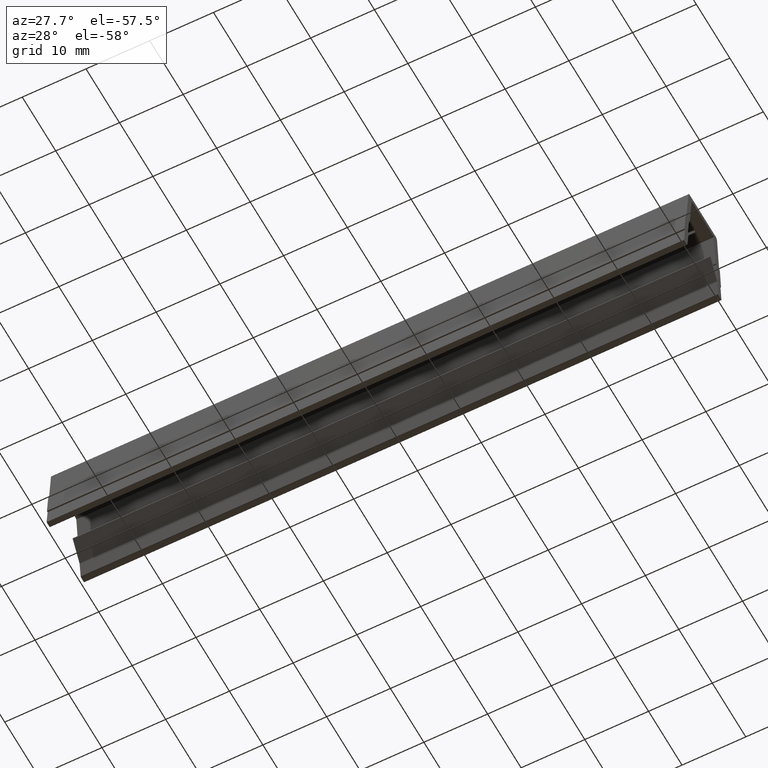
[diagram: clean part render]
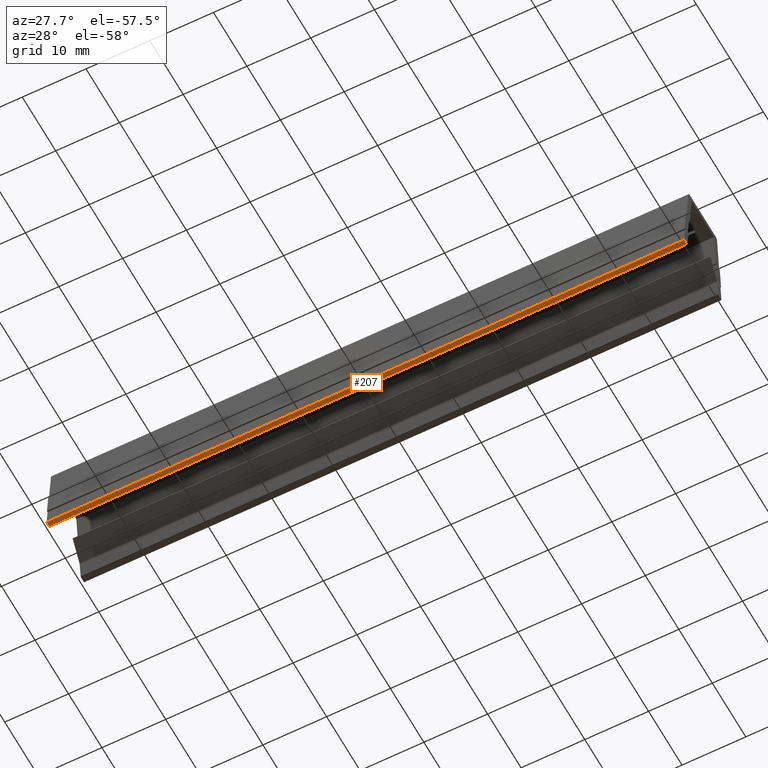
[diagram: same view with one face highlighted and labeled with its STEP entity id]
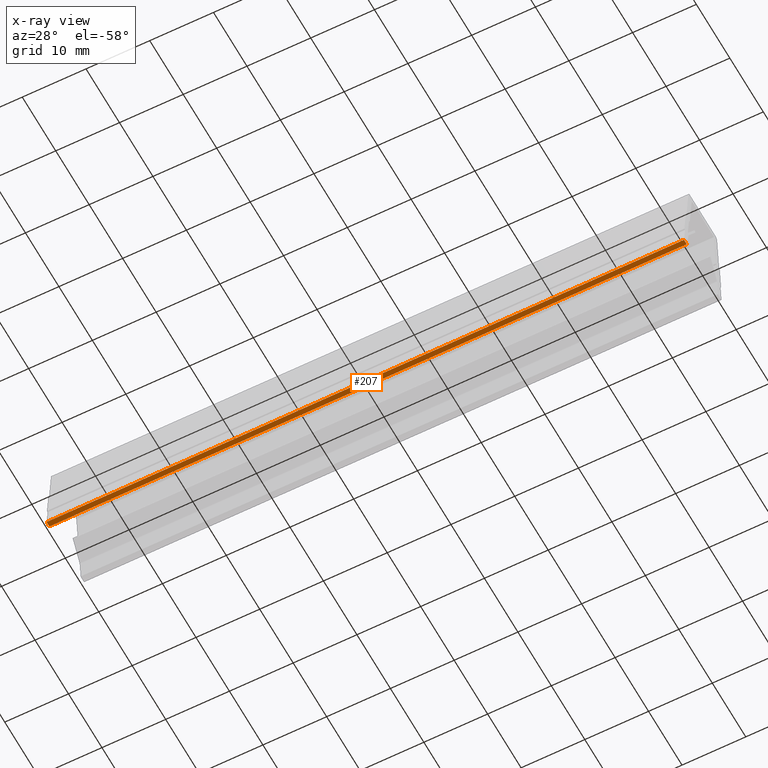
[diagram: x-ray of the same camera — body ghosted, the highlighted face saturated]
A machine part, auxiliary view. The second image highlights one B-rep face of the part: STEP entity #207.
The next image is the same camera in x-ray: the body ghosted, the highlighted face saturated — about 0% of this face is hidden behind the body in this view.
In plain terms, the highlighted planar face has unit normal (0, 0, -1).
Its self-contained STEP definition (entity closure, byte-faithful):
#168=CARTESIAN_POINT('',(105.0,-4.735807597216827,-13.200000000000001));
#169=DIRECTION('',(0.0,0.0,-1.0));
#170=DIRECTION('',(0.0,-1.0,0.0));
#171=AXIS2_PLACEMENT_3D('',#168,#169,#170);
#172=PLANE('',#171);
#173=CARTESIAN_POINT('',(0.0,-4.776845725841911,-13.200000000000001));
#174=VERTEX_POINT('',#173);
#175=CARTESIAN_POINT('',(0.0,-5.597608298343594,-13.200000000000001));
#176=VERTEX_POINT('',#175);
#177=CARTESIAN_POINT('',(0.0,-4.776845725841911,-13.200000000000001));
#178=DIRECTION('',(0.0,-1.0,0.0));
#179=VECTOR('',#178,0.820762572501684);
#180=LINE('',#177,#179);
#181=EDGE_CURVE('',#174,#176,#180,.T.);
#182=ORIENTED_EDGE('',*,*,#181,.F.);
#183=CARTESIAN_POINT('',(100.0,-4.776845725841911,-13.200000000000001));
#184=VERTEX_POINT('',#183);
#185=CARTESIAN_POINT('',(0.0,-4.776845725841911,-13.200000000000001));
#186=DIRECTION('',(1.0,0.0,0.0));
#187=VECTOR('',#186,100.0);
#188=LINE('',#185,#187);
#189=EDGE_CURVE('',#174,#184,#188,.T.);
#190=ORIENTED_EDGE('',*,*,#189,.T.);
#191=CARTESIAN_POINT('',(100.0,-5.597608298343600,-13.200000000000001));
#192=VERTEX_POINT('',#191);
#193=CARTESIAN_POINT('',(100.0,-4.776845725841911,-13.200000000000001));
#194=DIRECTION('',(0.0,-1.0,0.0));
#195=VECTOR('',#194,0.820762572501689);
#196=LINE('',#193,#195);
#197=EDGE_CURVE('',#184,#192,#196,.T.);
#198=ORIENTED_EDGE('',*,*,#197,.T.);
#199=CARTESIAN_POINT('',(100.0,-5.597608298343600,-13.200000000000001));
#200=DIRECTION('',(-1.0,0.0,0.0));
#201=VECTOR('',#200,100.0);
#202=LINE('',#199,#201);
#203=EDGE_CURVE('',#192,#176,#202,.T.);
#204=ORIENTED_EDGE('',*,*,#203,.T.);
#205=EDGE_LOOP('',(#182,#190,#198,#204));
#206=FACE_OUTER_BOUND('',#205,.T.);
#207=ADVANCED_FACE('',(#206),#172,.T.);